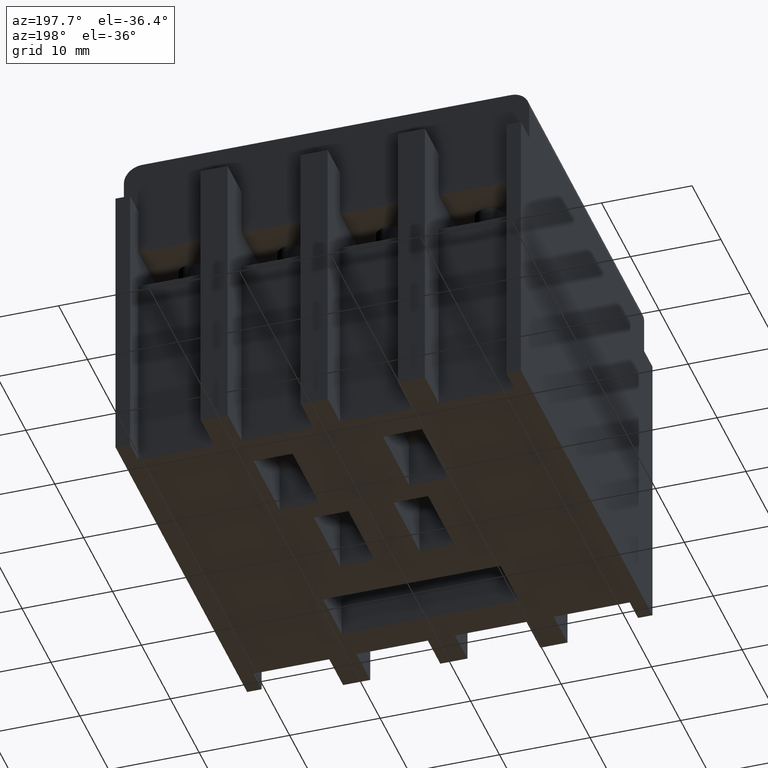
[diagram: clean part render]
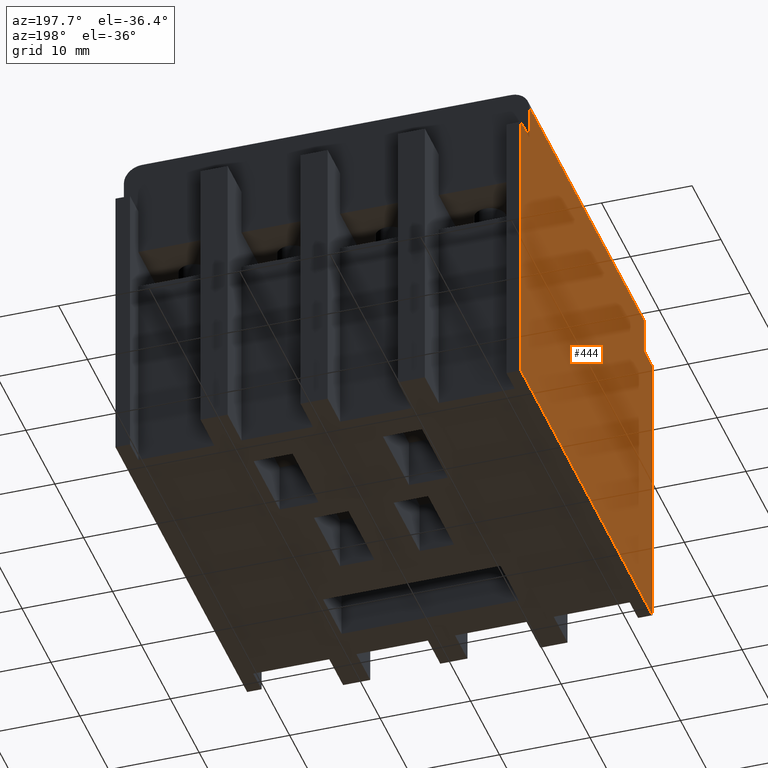
[diagram: same view with one face highlighted and labeled with its STEP entity id]
A machine part, auxiliary view. The second image highlights one B-rep face of the part: STEP entity #444.
In plain terms, the highlighted planar face has unit normal (-1, 0, 0).
Its self-contained STEP definition (entity closure, byte-faithful):
#139=FACE_OUTER_BOUND('',#1024,.T.);
#444=ADVANCED_FACE('',(#139),#681,.T.);
#681=PLANE('',#4594);
#1024=EDGE_LOOP('',(#1489,#1490,#1491,#1492,#1493,#1494,#1495,#1496));
#1489=ORIENTED_EDGE('',*,*,#3062,.T.);
#1490=ORIENTED_EDGE('',*,*,#3109,.T.);
#1491=ORIENTED_EDGE('',*,*,#3110,.F.);
#1492=ORIENTED_EDGE('',*,*,#3111,.F.);
#1493=ORIENTED_EDGE('',*,*,#3112,.F.);
#1494=ORIENTED_EDGE('',*,*,#2925,.T.);
#1495=ORIENTED_EDGE('',*,*,#3113,.T.);
#1496=ORIENTED_EDGE('',*,*,#3107,.T.);
#2505=VERTEX_POINT('',#6090);
#2506=VERTEX_POINT('',#6092);
#2639=VERTEX_POINT('',#6376);
#2640=VERTEX_POINT('',#6378);
#2669=VERTEX_POINT('',#6462);
#2670=VERTEX_POINT('',#6466);
#2671=VERTEX_POINT('',#6468);
#2672=VERTEX_POINT('',#6470);
#2925=EDGE_CURVE('',#2506,#2505,#3535,.T.);
#3062=EDGE_CURVE('',#2640,#2639,#3635,.T.);
#3107=EDGE_CURVE('',#2669,#2640,#3679,.T.);
#3109=EDGE_CURVE('',#2639,#2670,#3681,.T.);
#3110=EDGE_CURVE('',#2671,#2670,#3682,.T.);
#3111=EDGE_CURVE('',#2672,#2671,#3683,.T.);
#3112=EDGE_CURVE('',#2506,#2672,#3684,.T.);
#3113=EDGE_CURVE('',#2505,#2669,#3685,.T.);
#3535=LINE('',#6091,#4037);
#3635=LINE('',#6377,#4137);
#3679=LINE('',#6461,#4181);
#3681=LINE('',#6465,#4183);
#3682=LINE('',#6467,#4184);
#3683=LINE('',#6469,#4185);
#3684=LINE('',#6471,#4186);
#3685=LINE('',#6472,#4187);
#4037=VECTOR('',#4887,1.);
#4137=VECTOR('',#5091,1.);
#4181=VECTOR('',#5157,1.);
#4183=VECTOR('',#5161,1.);
#4184=VECTOR('',#5162,1.);
#4185=VECTOR('',#5163,1.);
#4186=VECTOR('',#5164,1.);
#4187=VECTOR('',#5165,1.);
#4594=AXIS2_PLACEMENT_3D('',#6473,#5166,#5167);
#4887=DIRECTION('',(0.,-1.,2.6968980355267E-014));
#5091=DIRECTION('',(0.,0.,1.));
#5157=DIRECTION('',(0.,1.,0.));
#5161=DIRECTION('',(0.,1.,0.));
#5162=DIRECTION('',(0.,5.52326749582304E-014,1.));
#5163=DIRECTION('',(0.,-1.,5.52326749582304E-014));
#5164=DIRECTION('',(0.,5.52326749582304E-014,1.));
#5165=DIRECTION('',(0.,0.,1.));
#5166=DIRECTION('',(-1.,0.,0.));
#5167=DIRECTION('',(0.,0.,1.));
#6090=CARTESIAN_POINT('',(-22.4,-22.7999999999999,75.5000000000006));
#6091=CARTESIAN_POINT('',(-22.4,6.93889390390723E-015,75.5));
#6092=CARTESIAN_POINT('',(-22.4,22.8000000000041,75.4999999999994));
#6376=CARTESIAN_POINT('',(-22.4,-19.9,112.));
#6377=CARTESIAN_POINT('',(-22.4,-19.9,108.));
#6378=CARTESIAN_POINT('',(-22.4,-19.9,108.));
#6461=CARTESIAN_POINT('',(-22.4,-24.6999999999991,108.));
#6462=CARTESIAN_POINT('',(-22.4,-22.7999999999999,108.));
#6465=CARTESIAN_POINT('',(-22.4,19.9000000000062,112.));
#6466=CARTESIAN_POINT('',(-22.4,19.9000000000061,112.));
#6467=CARTESIAN_POINT('',(-22.4,19.9000000000059,107.999999999999));
#6468=CARTESIAN_POINT('',(-22.4,19.9000000000059,107.999999999999));
#6469=CARTESIAN_POINT('',(-22.4,24.700000000005,107.999999999999));
#6470=CARTESIAN_POINT('',(-22.4,22.8000000000059,107.999999999999));
#6471=CARTESIAN_POINT('',(-22.4,22.8000000000039,72.2499999999987));
#6472=CARTESIAN_POINT('',(-22.4,-22.7999999999999,72.25));
#6473=CARTESIAN_POINT('',(-22.4,1.07016788684984E-012,114.));